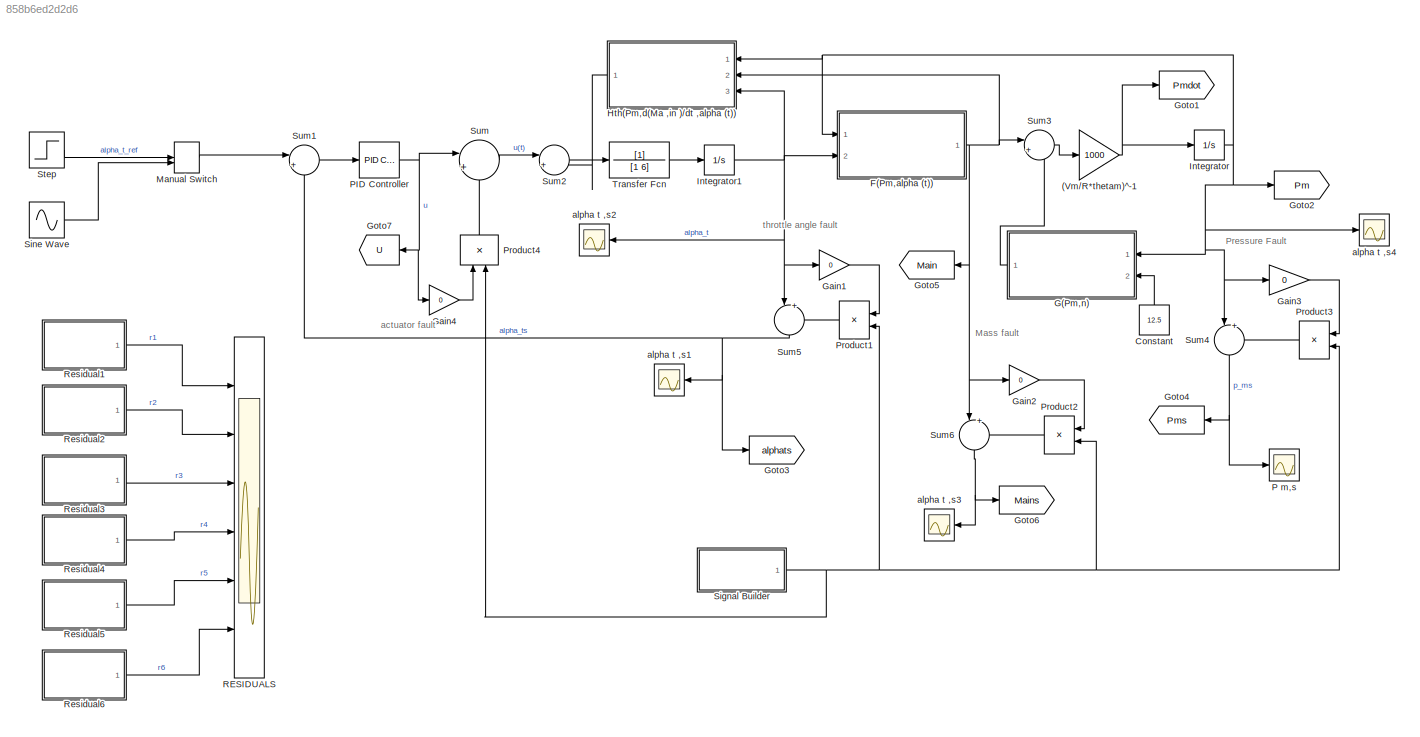
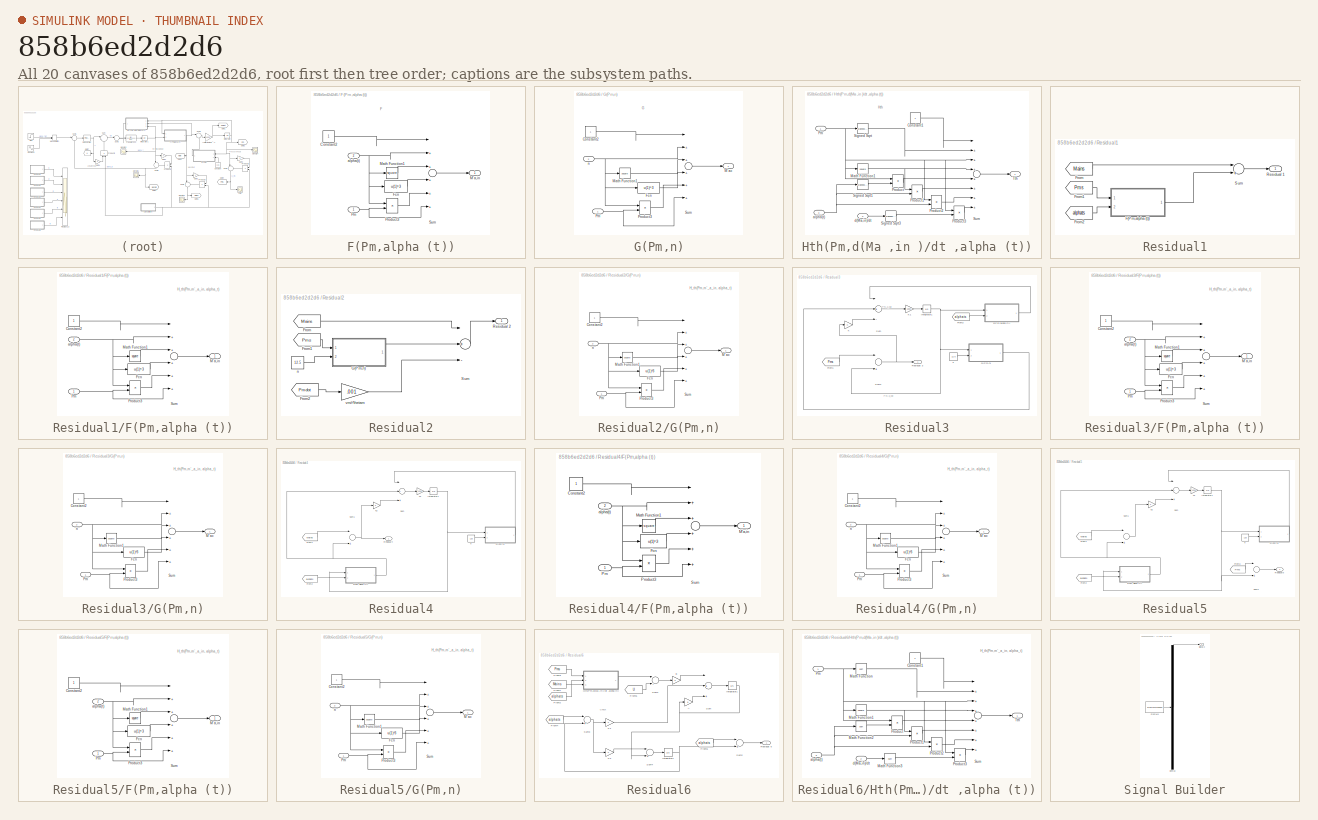
[diagram: thumbnail index - all 20 canvases of the model, root first then tree order]
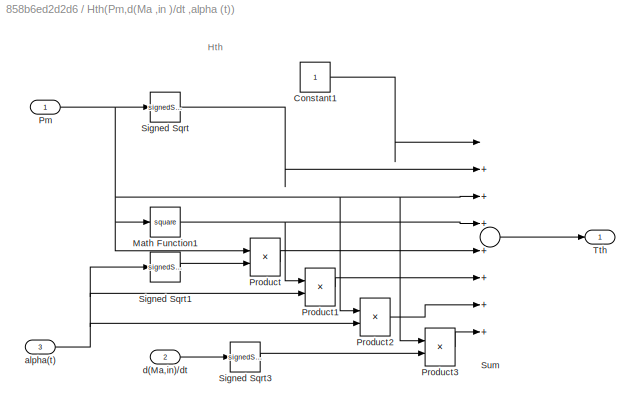
MODEL slx_858b6ed2d2d6
KIND model
CONFIG AbsTol = auto
CONFIG EnableMultiTasking = on
CONFIG FixedStep = auto
CONFIG MaxStep = auto
CONFIG MinStep = auto
CONFIG RelTol = 1e-3
CONFIG SampleTimeConstraint = Unconstrained
CONFIG Solver = ode23tb
CONFIG SolverName = ode23tb
CONFIG StartTime = 0.0
CONFIG StopTime = 40
BLOCK [Gain] (Vm//R*thetam)^-1
  Gain = 1000
  OutDataTypeStr = Inherit: Inherit via internal rule
  ParamDataTypeStr = Inherit: Inherit via internal rule
  SaturateOnIntegerOverflow = off
BLOCK [Constant] Constant
  Value = 12.5
BLOCK [SubSystem] F(Pm,alpha (t))
  Ports = [2, 1]
  RequestExecContextInheritance = off
  Variant = off
BLOCK [Constant] F(Pm,alpha (t))/Constant2
BLOCK [Fcn] F(Pm,alpha (t))/Fcn
  Expr = u(1)^3
BLOCK [Outport] F(Pm,alpha (t))/M'a,in
  IconDisplay = Port number
BLOCK [Math] F(Pm,alpha (t))/Math Function1
  Operator = square
  Ports = [1, 1]
BLOCK [Inport] F(Pm,alpha (t))/Pm
  IconDisplay = Port number
BLOCK [Product] F(Pm,alpha (t))/Product3
  InputSameDT = off
  OutDataTypeStr = Inherit: Inherit via internal rule
  Ports = [2, 1]
  SaturateOnIntegerOverflow = off
BLOCK [Sum] F(Pm,alpha (t))/Sum
  InputSameDT = off
  Inputs = |++++++
  OutDataTypeStr = Inherit: Inherit via internal rule
  Ports = [6, 1]
  SaturateOnIntegerOverflow = off
BLOCK [Inport] F(Pm,alpha (t))/alpha(t)
  IconDisplay = Port number
  Port = 2
BLOCK [SubSystem] G(Pm,n)
  Ports = [2, 1]
  RequestExecContextInheritance = off
  Variant = off
BLOCK [Constant] G(Pm,n)/Constant2
BLOCK [Fcn] G(Pm,n)/Fcn
  Expr = u(1)^3
BLOCK [Outport] G(Pm,n)/M'ac
  IconDisplay = Port number
BLOCK [Math] G(Pm,n)/Math Function1
  Operator = square
  Ports = [1, 1]
BLOCK [Inport] G(Pm,n)/Pm
  IconDisplay = Port number
BLOCK [Product] G(Pm,n)/Product3
  InputSameDT = off
  OutDataTypeStr = Inherit: Inherit via internal rule
  Ports = [2, 1]
  SaturateOnIntegerOverflow = off
BLOCK [Sum] G(Pm,n)/Sum
  InputSameDT = off
  Inputs = |++++++
  OutDataTypeStr = Inherit: Inherit via internal rule
  Ports = [6, 1]
  SaturateOnIntegerOverflow = off
BLOCK [Inport] G(Pm,n)/n
  IconDisplay = Port number
  Port = 2
BLOCK [Gain] Gain1
  Gain = 0
  OutDataTypeStr = Inherit: Inherit via internal rule
  ParamDataTypeStr = Inherit: Inherit via internal rule
  SaturateOnIntegerOverflow = off
BLOCK [Gain] Gain2
  Gain = 0
  OutDataTypeStr = Inherit: Inherit via internal rule
  ParamDataTypeStr = Inherit: Inherit via internal rule
  SaturateOnIntegerOverflow = off
BLOCK [Gain] Gain3
  Gain = 0
  OutDataTypeStr = Inherit: Inherit via internal rule
  ParamDataTypeStr = Inherit: Inherit via internal rule
  SaturateOnIntegerOverflow = off
BLOCK [Gain] Gain4
  Gain = 0
  OutDataTypeStr = Inherit: Inherit via internal rule
  ParamDataTypeStr = Inherit: Inherit via internal rule
  SaturateOnIntegerOverflow = off
BLOCK [Goto] Goto1
  GotoTag = Pmdot
  TagVisibility = global
BLOCK [Goto] Goto2
  GotoTag = Pm
  TagVisibility = global
BLOCK [Goto] Goto3
  GotoTag = alphats
  TagVisibility = global
BLOCK [Goto] Goto4
  GotoTag = Pms
  TagVisibility = global
BLOCK [Goto] Goto5
  GotoTag = Main
  TagVisibility = global
BLOCK [Goto] Goto6
  GotoTag = Mains
  TagVisibility = global
BLOCK [Goto] Goto7
  GotoTag = U
  TagVisibility = global
BLOCK [SubSystem] Hth(Pm,d(Ma ,in )//dt ,alpha (t))
  Ports = [3, 1]
  RequestExecContextInheritance = off
  Variant = off
BLOCK [Constant] Hth(Pm,d(Ma ,in )//dt ,alpha (t))/Constant1
BLOCK [Math] Hth(Pm,d(Ma ,in )//dt ,alpha (t))/Math Function1
  Operator = square
  Ports = [1, 1]
BLOCK [Inport] Hth(Pm,d(Ma ,in )//dt ,alpha (t))/Pm
  IconDisplay = Port number
BLOCK [Product] Hth(Pm,d(Ma ,in )//dt ,alpha (t))/Product
  InputSameDT = off
  OutDataTypeStr = Inherit: Inherit via internal rule
  Ports = [2, 1]
  SaturateOnIntegerOverflow = off
BLOCK [Product] Hth(Pm,d(Ma ,in )//dt ,alpha (t))/Product1
  InputSameDT = off
  OutDataTypeStr = Inherit: Inherit via internal rule
  Ports = [2, 1]
  SaturateOnIntegerOverflow = off
BLOCK [Product] Hth(Pm,d(Ma ,in )//dt ,alpha (t))/Product2
  InputSameDT = off
  OutDataTypeStr = Inherit: Inherit via internal rule
  Ports = [2, 1]
  SaturateOnIntegerOverflow = off
BLOCK [Product] Hth(Pm,d(Ma ,in )//dt ,alpha (t))/Product3
  InputSameDT = off
  OutDataTypeStr = Inherit: Inherit via internal rule
  Ports = [2, 1]
  SaturateOnIntegerOverflow = off
BLOCK [Sqrt] Hth(Pm,d(Ma ,in )//dt ,alpha (t))/Signed Sqrt
  Operator = signedSqrt
BLOCK [Sqrt] Hth(Pm,d(Ma ,in )//dt ,alpha (t))/Signed Sqrt1
  Operator = signedSqrt
BLOCK [Sqrt] Hth(Pm,d(Ma ,in )//dt ,alpha (t))/Signed Sqrt3
  Operator = signedSqrt
BLOCK [Sum] Hth(Pm,d(Ma ,in )//dt ,alpha (t))/Sum
  InputSameDT = off
  Inputs = |++++++++
  OutDataTypeStr = Inherit: Inherit via internal rule
  Ports = [8, 1]
  SaturateOnIntegerOverflow = off
BLOCK [Outport] Hth(Pm,d(Ma ,in )//dt ,alpha (t))/Tth
  IconDisplay = Port number
BLOCK [Inport] Hth(Pm,d(Ma ,in )//dt ,alpha (t))/alpha(t)
  IconDisplay = Port number
  Port = 3
BLOCK [Inport] Hth(Pm,d(Ma ,in )//dt ,alpha (t))/d(Ma,in)//dt
  IconDisplay = Port number
  Port = 2
BLOCK [Integrator] Integrator
  Ports = [1, 1]
BLOCK [Integrator] Integrator1
  Ports = [1, 1]
BLOCK [ManualSwitch] Manual Switch
BLOCK [Scope] P m,s
  NumInputPorts = 1
  Ports = [1]
  ScopeSpecificationString = Simulink.scopes.TimeScopeBlockCfg('CurrentConfiguration', extmgr.ConfigurationSet(extmgr.Configuration('Core','General UI',true),extmgr.Configuration('Core','Source UI',true),extmgr.Configuration('Sources','WiredSimulink',true,'DataLoggingVariableName','ScopeData3','DataLoggingSaveFormat','StructureWithTime','DataLoggingLimitDataPoints',true,'DataLoggingDecimation','1','DataLoggingDecimateData',tr...<+1714ch>
BLOCK [Reference] PID Controller  REF=simulink/Continuous/PID Controller
  Ports = [1, 1]
  SourceBlock = simulink/Continuous/PID Controller
  SourceProductBaseCode = SL
  SourceProductName = Simulink
  SourceType = PID 1dof
BLOCK [Product] Product1
  InputSameDT = off
  OutDataTypeStr = Inherit: Inherit via internal rule
  Ports = [2, 1]
  SaturateOnIntegerOverflow = off
BLOCK [Product] Product2
  InputSameDT = off
  OutDataTypeStr = Inherit: Inherit via internal rule
  Ports = [2, 1]
  SaturateOnIntegerOverflow = off
BLOCK [Product] Product3
  InputSameDT = off
  OutDataTypeStr = Inherit: Inherit via internal rule
  Ports = [2, 1]
  SaturateOnIntegerOverflow = off
BLOCK [Product] Product4
  InputSameDT = off
  OutDataTypeStr = Inherit: Inherit via internal rule
  Ports = [2, 1]
  SaturateOnIntegerOverflow = off
BLOCK [Scope] RESIDUALS
  NumInputPorts = 6
  Ports = [6]
  ScopeSpecificationString = Simulink.scopes.TimeScopeBlockCfg('CurrentConfiguration', extmgr.ConfigurationSet(extmgr.Configuration('Core','General UI',true),extmgr.Configuration('Core','Source UI',true),extmgr.Configuration('Sources','WiredSimulink',true,'DataLoggingVariableName','ScopeData9','DataLoggingSaveFormat','StructureWithTime','DataLoggingDecimation','1','DataLoggingDecimateData',true),extmgr.Configuration('Visuals'...<+5269ch>
BLOCK [SubSystem] Residual1
  Ports = [0, 1]
  RequestExecContextInheritance = off
  Variant = off
BLOCK [SubSystem] Residual1/F(Pm,alpha (t))
  Ports = [2, 1]
  RequestExecContextInheritance = off
  Variant = off
BLOCK [Constant] Residual1/F(Pm,alpha (t))/Constant2
BLOCK [Fcn] Residual1/F(Pm,alpha (t))/Fcn
  Expr = u(1)^3
BLOCK [Outport] Residual1/F(Pm,alpha (t))/M'a,in
  IconDisplay = Port number
BLOCK [Math] Residual1/F(Pm,alpha (t))/Math Function1
  Operator = square
  Ports = [1, 1]
BLOCK [Inport] Residual1/F(Pm,alpha (t))/Pm
  IconDisplay = Port number
BLOCK [Product] Residual1/F(Pm,alpha (t))/Product3
  InputSameDT = off
  OutDataTypeStr = Inherit: Inherit via internal rule
  Ports = [2, 1]
  SaturateOnIntegerOverflow = off
BLOCK [Sum] Residual1/F(Pm,alpha (t))/Sum
  InputSameDT = off
  Inputs = |++++++
  OutDataTypeStr = Inherit: Inherit via internal rule
  Ports = [6, 1]
  SaturateOnIntegerOverflow = off
BLOCK [Inport] Residual1/F(Pm,alpha (t))/alpha(t)
  IconDisplay = Port number
  Port = 2
BLOCK [From] Residual1/From
  CloseFcn = tagdialog Close
  GotoTag = Mains
  TagVisibility = global
BLOCK [From] Residual1/From1
  CloseFcn = tagdialog Close
  GotoTag = Pms
  TagVisibility = global
BLOCK [From] Residual1/From2
  CloseFcn = tagdialog Close
  GotoTag = alphats
  TagVisibility = global
BLOCK [Outport] Residual1/Residual 1
  IconDisplay = Port number
BLOCK [Sum] Residual1/Sum
  InputSameDT = off
  Inputs = |+-
  OutDataTypeStr = Inherit: Inherit via internal rule
  Ports = [2, 1]
  SaturateOnIntegerOverflow = off
BLOCK [SubSystem] Residual2
  Ports = [0, 1]
  RequestExecContextInheritance = off
  Variant = off
BLOCK [From] Residual2/From
  CloseFcn = tagdialog Close
  GotoTag = Mains
  TagVisibility = global
BLOCK [From] Residual2/From1
  CloseFcn = tagdialog Close
  GotoTag = Pms
  TagVisibility = global
BLOCK [From] Residual2/From2
  CloseFcn = tagdialog Close
  GotoTag = Pmdot
  TagVisibility = global
BLOCK [SubSystem] Residual2/G(Pm,n)
  Ports = [2, 1]
  RequestExecContextInheritance = off
  Variant = off
BLOCK [Constant] Residual2/G(Pm,n)/Constant2
BLOCK [Fcn] Residual2/G(Pm,n)/Fcn
  Expr = u(1)^3
BLOCK [Outport] Residual2/G(Pm,n)/M'ac
  IconDisplay = Port number
BLOCK [Math] Residual2/G(Pm,n)/Math Function1
  Operator = square
  Ports = [1, 1]
BLOCK [Inport] Residual2/G(Pm,n)/Pm
  IconDisplay = Port number
BLOCK [Product] Residual2/G(Pm,n)/Product3
  InputSameDT = off
  OutDataTypeStr = Inherit: Inherit via internal rule
  Ports = [2, 1]
  SaturateOnIntegerOverflow = off
BLOCK [Sum] Residual2/G(Pm,n)/Sum
  InputSameDT = off
  Inputs = |++++++
  OutDataTypeStr = Inherit: Inherit via internal rule
  Ports = [6, 1]
  SaturateOnIntegerOverflow = off
BLOCK [Inport] Residual2/G(Pm,n)/n
  IconDisplay = Port number
  Port = 2
BLOCK [Outport] Residual2/Residual 2
  IconDisplay = Port number
BLOCK [Sum] Residual2/Sum
  InputSameDT = off
  Inputs = |+--
  OutDataTypeStr = Inherit: Inherit via internal rule
  Ports = [3, 1]
  SaturateOnIntegerOverflow = off
BLOCK [Constant] Residual2/n
  Value = 12.5
BLOCK [Gain] Residual2/vm//r*thetam
  Gain = .001
  OutDataTypeStr = Inherit: Inherit via internal rule
  ParamDataTypeStr = Inherit: Inherit via internal rule
  SaturateOnIntegerOverflow = off
BLOCK [SubSystem] Residual3
  Ports = [0, 1]
  RequestExecContextInheritance = off
  Variant = off
BLOCK [SubSystem] Residual3/F(Pm,alpha (t))
  Ports = [2, 1]
  RequestExecContextInheritance = off
  Variant = off
BLOCK [Constant] Residual3/F(Pm,alpha (t))/Constant2
BLOCK [Fcn] Residual3/F(Pm,alpha (t))/Fcn
  Expr = u(1)^3
BLOCK [Outport] Residual3/F(Pm,alpha (t))/M'a,in
  IconDisplay = Port number
BLOCK [Math] Residual3/F(Pm,alpha (t))/Math Function1
  Operator = square
  Ports = [1, 1]
BLOCK [Inport] Residual3/F(Pm,alpha (t))/Pm
  IconDisplay = Port number
BLOCK [Product] Residual3/F(Pm,alpha (t))/Product3
  InputSameDT = off
  OutDataTypeStr = Inherit: Inherit via internal rule
  Ports = [2, 1]
  SaturateOnIntegerOverflow = off
BLOCK [Sum] Residual3/F(Pm,alpha (t))/Sum
  InputSameDT = off
  Inputs = |++++++
  OutDataTypeStr = Inherit: Inherit via internal rule
  Ports = [6, 1]
  SaturateOnIntegerOverflow = off
BLOCK [Inport] Residual3/F(Pm,alpha (t))/alpha(t)
  IconDisplay = Port number
  Port = 2
BLOCK [From] Residual3/From1
  CloseFcn = tagdialog Close
  GotoTag = Pms
  TagVisibility = global
BLOCK [From] Residual3/From2
  CloseFcn = tagdialog Close
  GotoTag = alphats
  TagVisibility = global
BLOCK [SubSystem] Residual3/G(Pm,n)
  Ports = [2, 1]
  RequestExecContextInheritance = off
  Variant = off
BLOCK [Constant] Residual3/G(Pm,n)/Constant2
BLOCK [Fcn] Residual3/G(Pm,n)/Fcn
  Expr = u(1)^3
BLOCK [Outport] Residual3/G(Pm,n)/M'ac
  IconDisplay = Port number
BLOCK [Math] Residual3/G(Pm,n)/Math Function1
  Operator = square
  Ports = [1, 1]
BLOCK [Inport] Residual3/G(Pm,n)/Pm
  IconDisplay = Port number
BLOCK [Product] Residual3/G(Pm,n)/Product3
  InputSameDT = off
  OutDataTypeStr = Inherit: Inherit via internal rule
  Ports = [2, 1]
  SaturateOnIntegerOverflow = off
BLOCK [Sum] Residual3/G(Pm,n)/Sum
  InputSameDT = off
  Inputs = |++++++
  OutDataTypeStr = Inherit: Inherit via internal rule
  Ports = [6, 1]
  SaturateOnIntegerOverflow = off
BLOCK [Inport] Residual3/G(Pm,n)/n
  IconDisplay = Port number
  Port = 2
BLOCK [Integrator] Residual3/Integrator1
  Ports = [1, 1]
BLOCK [Gain] Residual3/K
  OutDataTypeStr = Inherit: Inherit via internal rule
  ParamDataTypeStr = Inherit: Inherit via internal rule
  SaturateOnIntegerOverflow = off
BLOCK [Gain] Residual3/K1
  Gain = 1000
  OutDataTypeStr = Inherit: Inherit via internal rule
  ParamDataTypeStr = Inherit: Inherit via internal rule
  SaturateOnIntegerOverflow = off
BLOCK [Outport] Residual3/Residual 3
  IconDisplay = Port number
BLOCK [Sum] Residual3/Sum
  InputSameDT = off
  Inputs = |+-+
  OutDataTypeStr = Inherit: Inherit via internal rule
  Ports = [3, 1]
  SaturateOnIntegerOverflow = off
BLOCK [Sum] Residual3/Sum1
  InputSameDT = off
  Inputs = |+-
  OutDataTypeStr = Inherit: Inherit via internal rule
  Ports = [2, 1]
  SaturateOnIntegerOverflow = off
BLOCK [Constant] Residual3/n
  Value = 12.5
BLOCK [SubSystem] Residual4
  Ports = [0, 1]
  RequestExecContextInheritance = off
  Variant = off
BLOCK [SubSystem] Residual4/F(Pm,alpha (t))
  Ports = [2, 1]
  RequestExecContextInheritance = off
  Variant = off
BLOCK [Constant] Residual4/F(Pm,alpha (t))/Constant2
BLOCK [Fcn] Residual4/F(Pm,alpha (t))/Fcn
  Expr = u(1)^3
BLOCK [Outport] Residual4/F(Pm,alpha (t))/M'a,in
  IconDisplay = Port number
BLOCK [Math] Residual4/F(Pm,alpha (t))/Math Function1
  Operator = square
  Ports = [1, 1]
BLOCK [Inport] Residual4/F(Pm,alpha (t))/Pm
  IconDisplay = Port number
BLOCK [Product] Residual4/F(Pm,alpha (t))/Product3
  InputSameDT = off
  OutDataTypeStr = Inherit: Inherit via internal rule
  Ports = [2, 1]
  SaturateOnIntegerOverflow = off
BLOCK [Sum] Residual4/F(Pm,alpha (t))/Sum
  InputSameDT = off
  Inputs = |++++++
  OutDataTypeStr = Inherit: Inherit via internal rule
  Ports = [6, 1]
  SaturateOnIntegerOverflow = off
BLOCK [Inport] Residual4/F(Pm,alpha (t))/alpha(t)
  IconDisplay = Port number
  Port = 2
BLOCK [From] Residual4/From1
  CloseFcn = tagdialog Close
  GotoTag = Mains
  TagVisibility = global
BLOCK [From] Residual4/From2
  CloseFcn = tagdialog Close
  GotoTag = alphats
  TagVisibility = global
BLOCK [SubSystem] Residual4/G(Pm,n)
  Ports = [2, 1]
  RequestExecContextInheritance = off
  Variant = off
BLOCK [Constant] Residual4/G(Pm,n)/Constant2
BLOCK [Fcn] Residual4/G(Pm,n)/Fcn
  Expr = u(1)^3
BLOCK [Outport] Residual4/G(Pm,n)/M'ac
  IconDisplay = Port number
BLOCK [Math] Residual4/G(Pm,n)/Math Function1
  Operator = square
  Ports = [1, 1]
BLOCK [Inport] Residual4/G(Pm,n)/Pm
  IconDisplay = Port number
BLOCK [Product] Residual4/G(Pm,n)/Product3
  InputSameDT = off
  OutDataTypeStr = Inherit: Inherit via internal rule
  Ports = [2, 1]
  SaturateOnIntegerOverflow = off
BLOCK [Sum] Residual4/G(Pm,n)/Sum
  InputSameDT = off
  Inputs = |++++++
  OutDataTypeStr = Inherit: Inherit via internal rule
  Ports = [6, 1]
  SaturateOnIntegerOverflow = off
BLOCK [Inport] Residual4/G(Pm,n)/n
  IconDisplay = Port number
  Port = 2
BLOCK [Integrator] Residual4/Integrator1
  Ports = [1, 1]
BLOCK [Gain] Residual4/K1
  Gain = 1000
  OutDataTypeStr = Inherit: Inherit via internal rule
  ParamDataTypeStr = Inherit: Inherit via internal rule
  SaturateOnIntegerOverflow = off
BLOCK [Gain] Residual4/K2
  OutDataTypeStr = Inherit: Inherit via internal rule
  ParamDataTypeStr = Inherit: Inherit via internal rule
  SaturateOnIntegerOverflow = off
BLOCK [Outport] Residual4/Residual 4
  IconDisplay = Port number
BLOCK [Sum] Residual4/Sum
  InputSameDT = off
  Inputs = |-++
  OutDataTypeStr = Inherit: Inherit via internal rule
  Ports = [3, 1]
  SaturateOnIntegerOverflow = off
BLOCK [Sum] Residual4/Sum1
  InputSameDT = off
  Inputs = |+-
  OutDataTypeStr = Inherit: Inherit via internal rule
  Ports = [2, 1]
  SaturateOnIntegerOverflow = off
BLOCK [Constant] Residual4/n
  Value = 12.5
BLOCK [SubSystem] Residual5
  Ports = [0, 1]
  RequestExecContextInheritance = off
  Variant = off
BLOCK [SubSystem] Residual5/F(Pm,alpha (t))
  Ports = [2, 1]
  RequestExecContextInheritance = off
  Variant = off
BLOCK [Constant] Residual5/F(Pm,alpha (t))/Constant2
BLOCK [Fcn] Residual5/F(Pm,alpha (t))/Fcn
  Expr = u(1)^3
BLOCK [Outport] Residual5/F(Pm,alpha (t))/M'a,in
  IconDisplay = Port number
BLOCK [Math] Residual5/F(Pm,alpha (t))/Math Function1
  Operator = square
  Ports = [1, 1]
BLOCK [Inport] Residual5/F(Pm,alpha (t))/Pm
  IconDisplay = Port number
BLOCK [Product] Residual5/F(Pm,alpha (t))/Product3
  InputSameDT = off
  OutDataTypeStr = Inherit: Inherit via internal rule
  Ports = [2, 1]
  SaturateOnIntegerOverflow = off
BLOCK [Sum] Residual5/F(Pm,alpha (t))/Sum
  InputSameDT = off
  Inputs = |++++++
  OutDataTypeStr = Inherit: Inherit via internal rule
  Ports = [6, 1]
  SaturateOnIntegerOverflow = off
BLOCK [Inport] Residual5/F(Pm,alpha (t))/alpha(t)
  IconDisplay = Port number
  Port = 2
BLOCK [From] Residual5/From1
  CloseFcn = tagdialog Close
  GotoTag = Mains
  TagVisibility = global
BLOCK [From] Residual5/From2
  CloseFcn = tagdialog Close
  GotoTag = alphats
  TagVisibility = global
BLOCK [From] Residual5/From3
  CloseFcn = tagdialog Close
  GotoTag = Pms
  TagVisibility = global
BLOCK [SubSystem] Residual5/G(Pm,n)
  Ports = [2, 1]
  RequestExecContextInheritance = off
  Variant = off
BLOCK [Constant] Residual5/G(Pm,n)/Constant2
BLOCK [Fcn] Residual5/G(Pm,n)/Fcn
  Expr = u(1)^3
BLOCK [Outport] Residual5/G(Pm,n)/M'ac
  IconDisplay = Port number
BLOCK [Math] Residual5/G(Pm,n)/Math Function1
  Operator = square
  Ports = [1, 1]
BLOCK [Inport] Residual5/G(Pm,n)/Pm
  IconDisplay = Port number
BLOCK [Product] Residual5/G(Pm,n)/Product3
  InputSameDT = off
  OutDataTypeStr = Inherit: Inherit via internal rule
  Ports = [2, 1]
  SaturateOnIntegerOverflow = off
BLOCK [Sum] Residual5/G(Pm,n)/Sum
  InputSameDT = off
  Inputs = |++++++
  OutDataTypeStr = Inherit: Inherit via internal rule
  Ports = [6, 1]
  SaturateOnIntegerOverflow = off
BLOCK [Inport] Residual5/G(Pm,n)/n
  IconDisplay = Port number
  Port = 2
BLOCK [Integrator] Residual5/Integrator1
  Ports = [1, 1]
BLOCK [Gain] Residual5/K1
  Gain = 1000
  OutDataTypeStr = Inherit: Inherit via internal rule
  ParamDataTypeStr = Inherit: Inherit via internal rule
  SaturateOnIntegerOverflow = off
BLOCK [Gain] Residual5/K2
  OutDataTypeStr = Inherit: Inherit via internal rule
  ParamDataTypeStr = Inherit: Inherit via internal rule
  SaturateOnIntegerOverflow = off
BLOCK [Outport] Residual5/Residual 5
  IconDisplay = Port number
BLOCK [Sum] Residual5/Sum
  InputSameDT = off
  Inputs = |-++
  OutDataTypeStr = Inherit: Inherit via internal rule
  Ports = [3, 1]
  SaturateOnIntegerOverflow = off
BLOCK [Sum] Residual5/Sum1
  InputSameDT = off
  Inputs = |+-
  OutDataTypeStr = Inherit: Inherit via internal rule
  Ports = [2, 1]
  SaturateOnIntegerOverflow = off
BLOCK [Sum] Residual5/Sum2
  InputSameDT = off
  Inputs = |+-
  OutDataTypeStr = Inherit: Inherit via internal rule
  Ports = [2, 1]
  SaturateOnIntegerOverflow = off
BLOCK [Constant] Residual5/n
  Value = 12.5
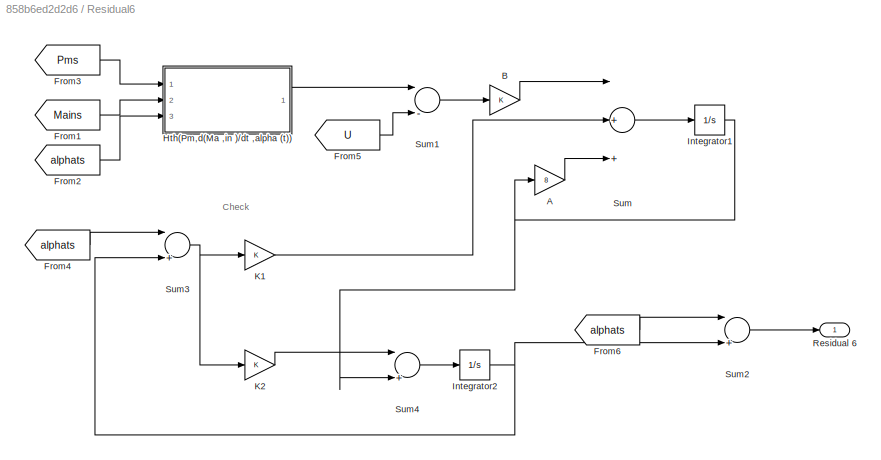
BLOCK [SubSystem] Residual6
  Ports = [0, 1]
  RequestExecContextInheritance = off
  Variant = off
BLOCK [Gain] Residual6/A
  Gain = 8
  OutDataTypeStr = Inherit: Inherit via internal rule
  ParamDataTypeStr = Inherit: Inherit via internal rule
  SaturateOnIntegerOverflow = off
BLOCK [Gain] Residual6/B
  OutDataTypeStr = Inherit: Inherit via internal rule
  ParamDataTypeStr = Inherit: Inherit via internal rule
  SaturateOnIntegerOverflow = off
BLOCK [From] Residual6/From1
  CloseFcn = tagdialog Close
  GotoTag = Mains
  TagVisibility = global
BLOCK [From] Residual6/From2
  CloseFcn = tagdialog Close
  GotoTag = alphats
  TagVisibility = global
BLOCK [From] Residual6/From3
  CloseFcn = tagdialog Close
  GotoTag = Pms
  TagVisibility = global
BLOCK [From] Residual6/From4
  CloseFcn = tagdialog Close
  GotoTag = alphats
  TagVisibility = global
BLOCK [From] Residual6/From5
  CloseFcn = tagdialog Close
  GotoTag = U
  TagVisibility = global
BLOCK [From] Residual6/From6
  CloseFcn = tagdialog Close
  GotoTag = alphats
  TagVisibility = global
BLOCK [SubSystem] Residual6/Hth(Pm,d(Ma ,in )//dt ,alpha (t))
  Ports = [3, 1]
  RequestExecContextInheritance = off
  Variant = off
BLOCK [Constant] Residual6/Hth(Pm,d(Ma ,in )//dt ,alpha (t))/Constant1
BLOCK [Math] Residual6/Hth(Pm,d(Ma ,in )//dt ,alpha (t))/Math Function
  Operator = sqrt
  Ports = [1, 1]
BLOCK [Math] Residual6/Hth(Pm,d(Ma ,in )//dt ,alpha (t))/Math Function1
  Operator = square
  Ports = [1, 1]
BLOCK [Math] Residual6/Hth(Pm,d(Ma ,in )//dt ,alpha (t))/Math Function2
  Operator = sqrt
  Ports = [1, 1]
BLOCK [Math] Residual6/Hth(Pm,d(Ma ,in )//dt ,alpha (t))/Math Function3
  Operator = sqrt
  Ports = [1, 1]
BLOCK [Inport] Residual6/Hth(Pm,d(Ma ,in )//dt ,alpha (t))/Pm
  IconDisplay = Port number
BLOCK [Product] Residual6/Hth(Pm,d(Ma ,in )//dt ,alpha (t))/Product
  InputSameDT = off
  OutDataTypeStr = Inherit: Inherit via internal rule
  Ports = [2, 1]
  SaturateOnIntegerOverflow = off
BLOCK [Product] Residual6/Hth(Pm,d(Ma ,in )//dt ,alpha (t))/Product1
  InputSameDT = off
  OutDataTypeStr = Inherit: Inherit via internal rule
  Ports = [2, 1]
  SaturateOnIntegerOverflow = off
BLOCK [Product] Residual6/Hth(Pm,d(Ma ,in )//dt ,alpha (t))/Product2
  InputSameDT = off
  OutDataTypeStr = Inherit: Inherit via internal rule
  Ports = [2, 1]
  SaturateOnIntegerOverflow = off
BLOCK [Product] Residual6/Hth(Pm,d(Ma ,in )//dt ,alpha (t))/Product3
  InputSameDT = off
  OutDataTypeStr = Inherit: Inherit via internal rule
  Ports = [2, 1]
  SaturateOnIntegerOverflow = off
BLOCK [Sum] Residual6/Hth(Pm,d(Ma ,in )//dt ,alpha (t))/Sum
  InputSameDT = off
  Inputs = |++++++++
  OutDataTypeStr = Inherit: Inherit via internal rule
  Ports = [8, 1]
  SaturateOnIntegerOverflow = off
BLOCK [Outport] Residual6/Hth(Pm,d(Ma ,in )//dt ,alpha (t))/Tth
  IconDisplay = Port number
BLOCK [Inport] Residual6/Hth(Pm,d(Ma ,in )//dt ,alpha (t))/alpha(t)
  IconDisplay = Port number
  Port = 3
BLOCK [Inport] Residual6/Hth(Pm,d(Ma ,in )//dt ,alpha (t))/d(Ma,in)//dt
  IconDisplay = Port number
  Port = 2
BLOCK [Integrator] Residual6/Integrator1
  Ports = [1, 1]
BLOCK [Integrator] Residual6/Integrator2
  Ports = [1, 1]
BLOCK [Gain] Residual6/K1
  OutDataTypeStr = Inherit: Inherit via internal rule
  ParamDataTypeStr = Inherit: Inherit via internal rule
  SaturateOnIntegerOverflow = off
BLOCK [Gain] Residual6/K2
  OutDataTypeStr = Inherit: Inherit via internal rule
  ParamDataTypeStr = Inherit: Inherit via internal rule
  SaturateOnIntegerOverflow = off
BLOCK [Outport] Residual6/Residual 6
  IconDisplay = Port number
BLOCK [Sum] Residual6/Sum
  InputSameDT = off
  Inputs = |+++
  OutDataTypeStr = Inherit: Inherit via internal rule
  Ports = [3, 1]
  SaturateOnIntegerOverflow = off
BLOCK [Sum] Residual6/Sum1
  InputSameDT = off
  Inputs = |-+
  OutDataTypeStr = Inherit: Inherit via internal rule
  Ports = [2, 1]
  SaturateOnIntegerOverflow = off
BLOCK [Sum] Residual6/Sum2
  InputSameDT = off
  Inputs = |+-
  OutDataTypeStr = Inherit: Inherit via internal rule
  Ports = [2, 1]
  SaturateOnIntegerOverflow = off
BLOCK [Sum] Residual6/Sum3
  InputSameDT = off
  Inputs = |+-
  OutDataTypeStr = Inherit: Inherit via internal rule
  Ports = [2, 1]
  SaturateOnIntegerOverflow = off
BLOCK [Sum] Residual6/Sum4
  InputSameDT = off
  Inputs = |++
  OutDataTypeStr = Inherit: Inherit via internal rule
  Ports = [2, 1]
  SaturateOnIntegerOverflow = off
BLOCK [SubSystem] Signal Builder
  ClipboardFcn = sigbuilder_block('clipboard');
  CloseFcn = sigbuilder_block('close');
  ContinueFcn = sigbuilder_block('continue')
  CopyFcn = sigbuilder_block('copy');
  DeleteFcn = sigbuilder_block('delete');
  LoadFcn = sigbuilder_block('load');
  MaskHideContents = on
  ModelCloseFcn = sigbuilder_block('modelClose');
  NameChangeFcn = sigbuilder_block('namechange');
  OpenFcn = sigbuilder_block('open',[437.25 117.75 550.5 394.5 ]);
  PauseFcn = sigbuilder_block('pause')
  Ports = [0, 1]
  PreSaveFcn = sigbuilder_block('preSave');
  RequestExecContextInheritance = off
  StartFcn = sigbuilder_block('start');
  StopFcn = sigbuilder_block('stop');
  Tag = STV Subsys
  Variant = off
BLOCK [Demux] Signal Builder/Demux
  Outputs = 1
  Ports = [1, 1]
  Tag = STV Demux
BLOCK [FromWorkspace] Signal Builder/FromWs
  SampleTime = 0
  Tag = STV FromWs
  VariableName = tuvar
  ZeroCross = on
BLOCK [Outport] Signal Builder/Signal 2
  IconDisplay = Port number
  Tag = STV Outport
BLOCK [Sin] Sine Wave
  Ports = [0, 1]
  SampleTime = 0
BLOCK [Step] Step
  After = 20
  SampleTime = 0
  Time = 0.01
BLOCK [Sum] Sum
  IconShape = round
  InputSameDT = off
  Inputs = |++
  OutDataTypeStr = Inherit: Inherit via internal rule
  Ports = [2, 1]
  SaturateOnIntegerOverflow = off
BLOCK [Sum] Sum1
  IconShape = round
  InputSameDT = off
  Inputs = |+-
  OutDataTypeStr = Inherit: Inherit via internal rule
  Ports = [2, 1]
  SaturateOnIntegerOverflow = off
BLOCK [Sum] Sum2
  IconShape = round
  InputSameDT = off
  Inputs = |+-
  OutDataTypeStr = Inherit: Inherit via internal rule
  Ports = [2, 1]
  SaturateOnIntegerOverflow = off
BLOCK [Sum] Sum3
  IconShape = round
  InputSameDT = off
  Inputs = |+-
  OutDataTypeStr = Inherit: Inherit via internal rule
  Ports = [2, 1]
  SaturateOnIntegerOverflow = off
BLOCK [Sum] Sum4
  CollapseMode = Specified dimension
  IconShape = round
  InputSameDT = off
  Inputs = |++
  OutDataTypeStr = Inherit: Inherit via internal rule
  Ports = [2, 1]
  SaturateOnIntegerOverflow = off
BLOCK [Sum] Sum5
  CollapseMode = Specified dimension
  IconShape = round
  InputSameDT = off
  Inputs = |++
  OutDataTypeStr = Inherit: Inherit via internal rule
  Ports = [2, 1]
  SaturateOnIntegerOverflow = off
BLOCK [Sum] Sum6
  CollapseMode = Specified dimension
  IconShape = round
  InputSameDT = off
  Inputs = |++
  OutDataTypeStr = Inherit: Inherit via internal rule
  Ports = [2, 1]
  SaturateOnIntegerOverflow = off
BLOCK [TransferFcn] Transfer Fcn
  Denominator = [1 6]
BLOCK [Scope] alpha t ,s1
  NumInputPorts = 1
  Ports = [1]
  ScopeSpecificationString = Simulink.scopes.TimeScopeBlockCfg('CurrentConfiguration', extmgr.ConfigurationSet(extmgr.Configuration('Core','General UI',true),extmgr.Configuration('Core','Source UI',true),extmgr.Configuration('Sources','WiredSimulink',true,'DataLoggingSaveFormat','StructureWithTime','DataLoggingDecimation','1','DataLoggingDecimateData',true),extmgr.Configuration('Visuals','Time Domain',true,'SerializedDisplays...<+1648ch>
BLOCK [Scope] alpha t ,s2
  NumInputPorts = 1
  Ports = [1]
  ScopeSpecificationString = Simulink.scopes.TimeScopeBlockCfg('CurrentConfiguration', extmgr.ConfigurationSet(extmgr.Configuration('Core','General UI',true),extmgr.Configuration('Core','Source UI',true),extmgr.Configuration('Sources','WiredSimulink',true,'DataLoggingVariableName','ScopeData5','DataLoggingSaveFormat','StructureWithTime','DataLoggingDecimation','1','DataLoggingDecimateData',true),extmgr.Configuration('Visuals'...<+1680ch>
BLOCK [Scope] alpha t ,s3
  NumInputPorts = 1
  Ports = [1]
  ScopeSpecificationString = Simulink.scopes.TimeScopeBlockCfg('CurrentConfiguration', extmgr.ConfigurationSet(extmgr.Configuration('Core','General UI',true),extmgr.Configuration('Core','Source UI',true),extmgr.Configuration('Sources','WiredSimulink',true,'DataLoggingVariableName','ScopeData1','DataLoggingSaveFormat','StructureWithTime','DataLoggingDecimation','1','DataLoggingDecimateData',true),extmgr.Configuration('Visuals'...<+1703ch>
BLOCK [Scope] alpha t ,s4
  NumInputPorts = 1
  Ports = [1]
  ScopeSpecificationString = Simulink.scopes.TimeScopeBlockCfg('CurrentConfiguration', extmgr.ConfigurationSet(extmgr.Configuration('Core','General UI',true),extmgr.Configuration('Core','Source UI',true),extmgr.Configuration('Sources','WiredSimulink',true,'DataLoggingVariableName','ScopeData2','DataLoggingSaveFormat','StructureWithTime','DataLoggingDecimation','1','DataLoggingDecimateData',true),extmgr.Configuration('Visuals'...<+1706ch>
ANNOTATION (root): Mass fault
ANNOTATION (root): Pressure Fault
ANNOTATION (root): actuator fault
ANNOTATION (root): throttle angle fault
ANNOTATION F(Pm,alpha (t)): F
ANNOTATION G(Pm,n): G
ANNOTATION Hth(Pm,d(Ma ,in )//dt ,alpha (t)): Hth
ANNOTATION Residual1/F(Pm,alpha (t)): H_th(Pm,m’_a_in, alpha_t)
ANNOTATION Residual2/G(Pm,n): H_th(Pm,m’_a_in, alpha_t)
ANNOTATION Residual3: P'm,3_hat
ANNOTATION Residual3: Pm,3_hat
ANNOTATION Residual3/F(Pm,alpha (t)): H_th(Pm,m’_a_in, alpha_t)
ANNOTATION Residual3/G(Pm,n): H_th(Pm,m’_a_in, alpha_t)
ANNOTATION Residual4/G(Pm,n): H_th(Pm,m’_a_in, alpha_t)
ANNOTATION Residual5/F(Pm,alpha (t)): H_th(Pm,m’_a_in, alpha_t)
ANNOTATION Residual5/G(Pm,n): H_th(Pm,m’_a_in, alpha_t)
ANNOTATION Residual6: Check
ANNOTATION Residual6/Hth(Pm,d(Ma ,in )//dt ,alpha (t)): H_th(Pm,m’_a_in, alpha_t)
NET (Vm//R*thetam)^-1:1 -> Goto1:1, Integrator:1
LINE Constant:1 -> G(Pm,n):2
LINE F(Pm,alpha (t))/Constant2:1 -> F(Pm,alpha (t))/Sum:1
LINE F(Pm,alpha (t))/Fcn:1 -> F(Pm,alpha (t))/Sum:4
LINE F(Pm,alpha (t))/Math Function1:1 -> F(Pm,alpha (t))/Sum:3
NET F(Pm,alpha (t))/Pm:1 -> F(Pm,alpha (t))/Product3:2, F(Pm,alpha (t))/Sum:6
LINE F(Pm,alpha (t))/Product3:1 -> F(Pm,alpha (t))/Sum:5
LINE F(Pm,alpha (t))/Sum:1 -> F(Pm,alpha (t))/M'a,in:1
NET F(Pm,alpha (t))/alpha(t):1 -> F(Pm,alpha (t))/Fcn:1, F(Pm,alpha (t))/Math Function1:1, F(Pm,alpha (t))/Product3:1, F(Pm,alpha (t))/Sum:2
NET F(Pm,alpha (t)):1 -> Gain2:1, Goto5:1, Hth(Pm,d(Ma ,in )//dt ,alpha (t)):2, Sum3:1, Sum6:1
LINE G(Pm,n)/Constant2:1 -> G(Pm,n)/Sum:1
LINE G(Pm,n)/Fcn:1 -> G(Pm,n)/Sum:4
LINE G(Pm,n)/Math Function1:1 -> G(Pm,n)/Sum:3
NET G(Pm,n)/Pm:1 -> G(Pm,n)/Product3:2, G(Pm,n)/Sum:6
LINE G(Pm,n)/Product3:1 -> G(Pm,n)/Sum:5
LINE G(Pm,n)/Sum:1 -> G(Pm,n)/M'ac:1
NET G(Pm,n)/n:1 -> G(Pm,n)/Fcn:1, G(Pm,n)/Math Function1:1, G(Pm,n)/Product3:1, G(Pm,n)/Sum:2
LINE G(Pm,n):1 -> Sum3:2
LINE Gain1:1 -> Product1:1
LINE Gain2:1 -> Product2:1
LINE Gain3:1 -> Product3:1
LINE Gain4:1 -> Product4:1
LINE Hth(Pm,d(Ma ,in )//dt ,alpha (t))/Constant1:1 -> Hth(Pm,d(Ma ,in )//dt ,alpha (t))/Sum:1
NET Hth(Pm,d(Ma ,in )//dt ,alpha (t))/Math Function1:1 -> Hth(Pm,d(Ma ,in )//dt ,alpha (t))/Product1:1, Hth(Pm,d(Ma ,in )//dt ,alpha (t))/Sum:4
NET Hth(Pm,d(Ma ,in )//dt ,alpha (t))/Pm:1 -> Hth(Pm,d(Ma ,in )//dt ,alpha (t))/Math Function1:1, Hth(Pm,d(Ma ,in )//dt ,alpha (t))/Product2:1, Hth(Pm,d(Ma ,in )//dt ,alpha (t))/Product3:1, Hth(Pm,d(Ma ,in )//dt ,alpha (t))/Product:1, Hth(Pm,d(Ma ,in )//dt ,alpha (t))/Signed Sqrt:1, Hth(Pm,d(Ma ,in )//dt ,alpha (t))/Sum:3
LINE Hth(Pm,d(Ma ,in )//dt ,alpha (t))/Product1:1 -> Hth(Pm,d(Ma ,in )//dt ,alpha (t))/Sum:6
LINE Hth(Pm,d(Ma ,in )//dt ,alpha (t))/Product2:1 -> Hth(Pm,d(Ma ,in )//dt ,alpha (t))/Sum:7
LINE Hth(Pm,d(Ma ,in )//dt ,alpha (t))/Product3:1 -> Hth(Pm,d(Ma ,in )//dt ,alpha (t))/Sum:8
LINE Hth(Pm,d(Ma ,in )//dt ,alpha (t))/Product:1 -> Hth(Pm,d(Ma ,in )//dt ,alpha (t))/Sum:5
LINE Hth(Pm,d(Ma ,in )//dt ,alpha (t))/Signed Sqrt1:1 -> Hth(Pm,d(Ma ,in )//dt ,alpha (t))/Product:2
LINE Hth(Pm,d(Ma ,in )//dt ,alpha (t))/Signed Sqrt3:1 -> Hth(Pm,d(Ma ,in )//dt ,alpha (t))/Product3:2
LINE Hth(Pm,d(Ma ,in )//dt ,alpha (t))/Signed Sqrt:1 -> Hth(Pm,d(Ma ,in )//dt ,alpha (t))/Sum:2
LINE Hth(Pm,d(Ma ,in )//dt ,alpha (t))/Sum:1 -> Hth(Pm,d(Ma ,in )//dt ,alpha (t))/Tth:1
NET Hth(Pm,d(Ma ,in )//dt ,alpha (t))/alpha(t):1 -> Hth(Pm,d(Ma ,in )//dt ,alpha (t))/Product1:2, Hth(Pm,d(Ma ,in )//dt ,alpha (t))/Product2:2, Hth(Pm,d(Ma ,in )//dt ,alpha (t))/Signed Sqrt1:1
LINE Hth(Pm,d(Ma ,in )//dt ,alpha (t))/d(Ma,in)//dt:1 -> Hth(Pm,d(Ma ,in )//dt ,alpha (t))/Signed Sqrt3:1
LINE Hth(Pm,d(Ma ,in )//dt ,alpha (t)):1 -> Sum2:2
NET Integrator1:1 -> F(Pm,alpha (t)):2, Gain1:1, Hth(Pm,d(Ma ,in )//dt ,alpha (t)):3, Sum5:1, alpha t ,s2:1
NET Integrator:1 -> F(Pm,alpha (t)):1, G(Pm,n):1, Gain3:1, Goto2:1, Hth(Pm,d(Ma ,in )//dt ,alpha (t)):1, Sum4:1, alpha t ,s4:1
LINE Manual Switch:1 -> Sum1:1
NET PID Controller:1 -> Gain4:1, Goto7:1, Sum:1
LINE Product1:1 -> Sum5:2
LINE Product2:1 -> Sum6:2
LINE Product3:1 -> Sum4:2
LINE Product4:1 -> Sum:2
LINE Residual1/F(Pm,alpha (t))/Constant2:1 -> Residual1/F(Pm,alpha (t))/Sum:1
LINE Residual1/F(Pm,alpha (t))/Fcn:1 -> Residual1/F(Pm,alpha (t))/Sum:4
LINE Residual1/F(Pm,alpha (t))/Math Function1:1 -> Residual1/F(Pm,alpha (t))/Sum:3
NET Residual1/F(Pm,alpha (t))/Pm:1 -> Residual1/F(Pm,alpha (t))/Product3:2, Residual1/F(Pm,alpha (t))/Sum:6
LINE Residual1/F(Pm,alpha (t))/Product3:1 -> Residual1/F(Pm,alpha (t))/Sum:5
LINE Residual1/F(Pm,alpha (t))/Sum:1 -> Residual1/F(Pm,alpha (t))/M'a,in:1
NET Residual1/F(Pm,alpha (t))/alpha(t):1 -> Residual1/F(Pm,alpha (t))/Fcn:1, Residual1/F(Pm,alpha (t))/Math Function1:1, Residual1/F(Pm,alpha (t))/Product3:1, Residual1/F(Pm,alpha (t))/Sum:2
LINE Residual1/F(Pm,alpha (t)):1 -> Residual1/Sum:2
LINE Residual1/From1:1 -> Residual1/F(Pm,alpha (t)):1
LINE Residual1/From2:1 -> Residual1/F(Pm,alpha (t)):2
LINE Residual1/From:1 -> Residual1/Sum:1
LINE Residual1/Sum:1 -> Residual1/Residual 1:1
LINE Residual1:1 -> RESIDUALS:1
LINE Residual2/From1:1 -> Residual2/G(Pm,n):1
LINE Residual2/From2:1 -> Residual2/vm//r*thetam:1
LINE Residual2/From:1 -> Residual2/Sum:1
LINE Residual2/G(Pm,n)/Constant2:1 -> Residual2/G(Pm,n)/Sum:1
LINE Residual2/G(Pm,n)/Fcn:1 -> Residual2/G(Pm,n)/Sum:4
LINE Residual2/G(Pm,n)/Math Function1:1 -> Residual2/G(Pm,n)/Sum:3
NET Residual2/G(Pm,n)/Pm:1 -> Residual2/G(Pm,n)/Product3:2, Residual2/G(Pm,n)/Sum:6
LINE Residual2/G(Pm,n)/Product3:1 -> Residual2/G(Pm,n)/Sum:5
LINE Residual2/G(Pm,n)/Sum:1 -> Residual2/G(Pm,n)/M'ac:1
NET Residual2/G(Pm,n)/n:1 -> Residual2/G(Pm,n)/Fcn:1, Residual2/G(Pm,n)/Math Function1:1, Residual2/G(Pm,n)/Product3:1, Residual2/G(Pm,n)/Sum:2
LINE Residual2/G(Pm,n):1 -> Residual2/Sum:2
LINE Residual2/Sum:1 -> Residual2/Residual 2:1
LINE Residual2/n:1 -> Residual2/G(Pm,n):2
LINE Residual2/vm//r*thetam:1 -> Residual2/Sum:3
LINE Residual2:1 -> RESIDUALS:2
LINE Residual3/F(Pm,alpha (t))/Constant2:1 -> Residual3/F(Pm,alpha (t))/Sum:1
LINE Residual3/F(Pm,alpha (t))/Fcn:1 -> Residual3/F(Pm,alpha (t))/Sum:4
LINE Residual3/F(Pm,alpha (t))/Math Function1:1 -> Residual3/F(Pm,alpha (t))/Sum:3
NET Residual3/F(Pm,alpha (t))/Pm:1 -> Residual3/F(Pm,alpha (t))/Product3:2, Residual3/F(Pm,alpha (t))/Sum:6
LINE Residual3/F(Pm,alpha (t))/Product3:1 -> Residual3/F(Pm,alpha (t))/Sum:5
LINE Residual3/F(Pm,alpha (t))/Sum:1 -> Residual3/F(Pm,alpha (t))/M'a,in:1
NET Residual3/F(Pm,alpha (t))/alpha(t):1 -> Residual3/F(Pm,alpha (t))/Fcn:1, Residual3/F(Pm,alpha (t))/Math Function1:1, Residual3/F(Pm,alpha (t))/Product3:1, Residual3/F(Pm,alpha (t))/Sum:2
LINE Residual3/F(Pm,alpha (t)):1 -> Residual3/Sum:1
LINE Residual3/From1:1 -> Residual3/Sum1:1
LINE Residual3/From2:1 -> Residual3/F(Pm,alpha (t)):2
LINE Residual3/G(Pm,n)/Constant2:1 -> Residual3/G(Pm,n)/Sum:1
LINE Residual3/G(Pm,n)/Fcn:1 -> Residual3/G(Pm,n)/Sum:4
LINE Residual3/G(Pm,n)/Math Function1:1 -> Residual3/G(Pm,n)/Sum:3
NET Residual3/G(Pm,n)/Pm:1 -> Residual3/G(Pm,n)/Product3:2, Residual3/G(Pm,n)/Sum:6
LINE Residual3/G(Pm,n)/Product3:1 -> Residual3/G(Pm,n)/Sum:5
LINE Residual3/G(Pm,n)/Sum:1 -> Residual3/G(Pm,n)/M'ac:1
NET Residual3/G(Pm,n)/n:1 -> Residual3/G(Pm,n)/Fcn:1, Residual3/G(Pm,n)/Math Function1:1, Residual3/G(Pm,n)/Product3:1, Residual3/G(Pm,n)/Sum:2
LINE Residual3/G(Pm,n):1 -> Residual3/Sum:2
NET Residual3/Integrator1:1 -> Residual3/F(Pm,alpha (t)):1, Residual3/G(Pm,n):1, Residual3/Sum1:2
LINE Residual3/K1:1 -> Residual3/Integrator1:1
LINE Residual3/K:1 -> Residual3/Sum:3
NET Residual3/Sum1:1 -> Residual3/K:1, Residual3/Residual 3:1
LINE Residual3/Sum:1 -> Residual3/K1:1
LINE Residual3/n:1 -> Residual3/G(Pm,n):2
LINE Residual3:1 -> RESIDUALS:3
LINE Residual4/F(Pm,alpha (t))/Constant2:1 -> Residual4/F(Pm,alpha (t))/Sum:1
LINE Residual4/F(Pm,alpha (t))/Fcn:1 -> Residual4/F(Pm,alpha (t))/Sum:4
LINE Residual4/F(Pm,alpha (t))/Math Function1:1 -> Residual4/F(Pm,alpha (t))/Sum:3
NET Residual4/F(Pm,alpha (t))/Pm:1 -> Residual4/F(Pm,alpha (t))/Product3:2, Residual4/F(Pm,alpha (t))/Sum:6
LINE Residual4/F(Pm,alpha (t))/Product3:1 -> Residual4/F(Pm,alpha (t))/Sum:5
LINE Residual4/F(Pm,alpha (t))/Sum:1 -> Residual4/F(Pm,alpha (t))/M'a,in:1
NET Residual4/F(Pm,alpha (t))/alpha(t):1 -> Residual4/F(Pm,alpha (t))/Fcn:1, Residual4/F(Pm,alpha (t))/Math Function1:1, Residual4/F(Pm,alpha (t))/Product3:1, Residual4/F(Pm,alpha (t))/Sum:2
NET Residual4/F(Pm,alpha (t)):1 -> Residual4/Sum1:2, Residual4/Sum:2
LINE Residual4/From1:1 -> Residual4/Sum1:1
LINE Residual4/From2:1 -> Residual4/F(Pm,alpha (t)):2
LINE Residual4/G(Pm,n)/Constant2:1 -> Residual4/G(Pm,n)/Sum:1
LINE Residual4/G(Pm,n)/Fcn:1 -> Residual4/G(Pm,n)/Sum:4
LINE Residual4/G(Pm,n)/Math Function1:1 -> Residual4/G(Pm,n)/Sum:3
NET Residual4/G(Pm,n)/Pm:1 -> Residual4/G(Pm,n)/Product3:2, Residual4/G(Pm,n)/Sum:6
LINE Residual4/G(Pm,n)/Product3:1 -> Residual4/G(Pm,n)/Sum:5
LINE Residual4/G(Pm,n)/Sum:1 -> Residual4/G(Pm,n)/M'ac:1
NET Residual4/G(Pm,n)/n:1 -> Residual4/G(Pm,n)/Fcn:1, Residual4/G(Pm,n)/Math Function1:1, Residual4/G(Pm,n)/Product3:1, Residual4/G(Pm,n)/Sum:2
LINE Residual4/G(Pm,n):1 -> Residual4/Sum:1
NET Residual4/Integrator1:1 -> Residual4/F(Pm,alpha (t)):1, Residual4/G(Pm,n):1
LINE Residual4/K1:1 -> Residual4/Integrator1:1
LINE Residual4/K2:1 -> Residual4/Sum:3
NET Residual4/Sum1:1 -> Residual4/K2:1, Residual4/Residual 4:1
LINE Residual4/Sum:1 -> Residual4/K1:1
LINE Residual4/n:1 -> Residual4/G(Pm,n):2
LINE Residual4:1 -> RESIDUALS:4
LINE Residual5/F(Pm,alpha (t))/Constant2:1 -> Residual5/F(Pm,alpha (t))/Sum:1
LINE Residual5/F(Pm,alpha (t))/Fcn:1 -> Residual5/F(Pm,alpha (t))/Sum:4
LINE Residual5/F(Pm,alpha (t))/Math Function1:1 -> Residual5/F(Pm,alpha (t))/Sum:3
NET Residual5/F(Pm,alpha (t))/Pm:1 -> Residual5/F(Pm,alpha (t))/Product3:2, Residual5/F(Pm,alpha (t))/Sum:6
LINE Residual5/F(Pm,alpha (t))/Product3:1 -> Residual5/F(Pm,alpha (t))/Sum:5
LINE Residual5/F(Pm,alpha (t))/Sum:1 -> Residual5/F(Pm,alpha (t))/M'a,in:1
NET Residual5/F(Pm,alpha (t))/alpha(t):1 -> Residual5/F(Pm,alpha (t))/Fcn:1, Residual5/F(Pm,alpha (t))/Math Function1:1, Residual5/F(Pm,alpha (t))/Product3:1, Residual5/F(Pm,alpha (t))/Sum:2
NET Residual5/F(Pm,alpha (t)):1 -> Residual5/Sum1:2, Residual5/Sum:2
LINE Residual5/From1:1 -> Residual5/Sum1:1
LINE Residual5/From2:1 -> Residual5/F(Pm,alpha (t)):2
LINE Residual5/From3:1 -> Residual5/Sum2:1
LINE Residual5/G(Pm,n)/Constant2:1 -> Residual5/G(Pm,n)/Sum:1
LINE Residual5/G(Pm,n)/Fcn:1 -> Residual5/G(Pm,n)/Sum:4
LINE Residual5/G(Pm,n)/Math Function1:1 -> Residual5/G(Pm,n)/Sum:3
NET Residual5/G(Pm,n)/Pm:1 -> Residual5/G(Pm,n)/Product3:2, Residual5/G(Pm,n)/Sum:6
LINE Residual5/G(Pm,n)/Product3:1 -> Residual5/G(Pm,n)/Sum:5
LINE Residual5/G(Pm,n)/Sum:1 -> Residual5/G(Pm,n)/M'ac:1
NET Residual5/G(Pm,n)/n:1 -> Residual5/G(Pm,n)/Fcn:1, Residual5/G(Pm,n)/Math Function1:1, Residual5/G(Pm,n)/Product3:1, Residual5/G(Pm,n)/Sum:2
LINE Residual5/G(Pm,n):1 -> Residual5/Sum:1
NET Residual5/Integrator1:1 -> Residual5/F(Pm,alpha (t)):1, Residual5/G(Pm,n):1, Residual5/Sum2:2
LINE Residual5/K1:1 -> Residual5/Integrator1:1
LINE Residual5/K2:1 -> Residual5/Sum:3
LINE Residual5/Sum1:1 -> Residual5/K2:1
LINE Residual5/Sum2:1 -> Residual5/Residual 5:1
LINE Residual5/Sum:1 -> Residual5/K1:1
LINE Residual5/n:1 -> Residual5/G(Pm,n):2
LINE Residual5:1 -> RESIDUALS:5
LINE Residual6/A:1 -> Residual6/Sum:3
LINE Residual6/B:1 -> Residual6/Sum:1
LINE Residual6/From1:1 -> Residual6/Hth(Pm,d(Ma ,in )//dt ,alpha (t)):2
LINE Residual6/From2:1 -> Residual6/Hth(Pm,d(Ma ,in )//dt ,alpha (t)):3
LINE Residual6/From3:1 -> Residual6/Hth(Pm,d(Ma ,in )//dt ,alpha (t)):1
LINE Residual6/From4:1 -> Residual6/Sum3:1
LINE Residual6/From5:1 -> Residual6/Sum1:2
LINE Residual6/From6:1 -> Residual6/Sum2:1
LINE Residual6/Hth(Pm,d(Ma ,in )//dt ,alpha (t))/Constant1:1 -> Residual6/Hth(Pm,d(Ma ,in )//dt ,alpha (t))/Sum:1
NET Residual6/Hth(Pm,d(Ma ,in )//dt ,alpha (t))/Math Function1:1 -> Residual6/Hth(Pm,d(Ma ,in )//dt ,alpha (t))/Product1:1, Residual6/Hth(Pm,d(Ma ,in )//dt ,alpha (t))/Sum:4
LINE Residual6/Hth(Pm,d(Ma ,in )//dt ,alpha (t))/Math Function2:1 -> Residual6/Hth(Pm,d(Ma ,in )//dt ,alpha (t))/Product:2
LINE Residual6/Hth(Pm,d(Ma ,in )//dt ,alpha (t))/Math Function3:1 -> Residual6/Hth(Pm,d(Ma ,in )//dt ,alpha (t))/Product3:2
LINE Residual6/Hth(Pm,d(Ma ,in )//dt ,alpha (t))/Math Function:1 -> Residual6/Hth(Pm,d(Ma ,in )//dt ,alpha (t))/Sum:2
NET Residual6/Hth(Pm,d(Ma ,in )//dt ,alpha (t))/Pm:1 -> Residual6/Hth(Pm,d(Ma ,in )//dt ,alpha (t))/Math Function1:1, Residual6/Hth(Pm,d(Ma ,in )//dt ,alpha (t))/Math Function:1, Residual6/Hth(Pm,d(Ma ,in )//dt ,alpha (t))/Product2:1, Residual6/Hth(Pm,d(Ma ,in )//dt ,alpha (t))/Product3:1, Residual6/Hth(Pm,d(Ma ,in )//dt ,alpha (t))/Product:1, Residual6/Hth(Pm,d(Ma ,in )//dt ,alpha (t))/Sum:3
LINE Residual6/Hth(Pm,d(Ma ,in )//dt ,alpha (t))/Product1:1 -> Residual6/Hth(Pm,d(Ma ,in )//dt ,alpha (t))/Sum:6
LINE Residual6/Hth(Pm,d(Ma ,in )//dt ,alpha (t))/Product2:1 -> Residual6/Hth(Pm,d(Ma ,in )//dt ,alpha (t))/Sum:7
LINE Residual6/Hth(Pm,d(Ma ,in )//dt ,alpha (t))/Product3:1 -> Residual6/Hth(Pm,d(Ma ,in )//dt ,alpha (t))/Sum:8
LINE Residual6/Hth(Pm,d(Ma ,in )//dt ,alpha (t))/Product:1 -> Residual6/Hth(Pm,d(Ma ,in )//dt ,alpha (t))/Sum:5
LINE Residual6/Hth(Pm,d(Ma ,in )//dt ,alpha (t))/Sum:1 -> Residual6/Hth(Pm,d(Ma ,in )//dt ,alpha (t))/Tth:1
NET Residual6/Hth(Pm,d(Ma ,in )//dt ,alpha (t))/alpha(t):1 -> Residual6/Hth(Pm,d(Ma ,in )//dt ,alpha (t))/Math Function2:1, Residual6/Hth(Pm,d(Ma ,in )//dt ,alpha (t))/Product1:2, Residual6/Hth(Pm,d(Ma ,in )//dt ,alpha (t))/Product2:2
LINE Residual6/Hth(Pm,d(Ma ,in )//dt ,alpha (t))/d(Ma,in)//dt:1 -> Residual6/Hth(Pm,d(Ma ,in )//dt ,alpha (t))/Math Function3:1
LINE Residual6/Hth(Pm,d(Ma ,in )//dt ,alpha (t)):1 -> Residual6/Sum1:1
NET Residual6/Integrator1:1 -> Residual6/A:1, Residual6/Sum4:2
NET Residual6/Integrator2:1 -> Residual6/Sum2:2, Residual6/Sum3:2
LINE Residual6/K1:1 -> Residual6/Sum:2
LINE Residual6/K2:1 -> Residual6/Sum4:1
LINE Residual6/Sum1:1 -> Residual6/B:1
LINE Residual6/Sum2:1 -> Residual6/Residual 6:1
NET Residual6/Sum3:1 -> Residual6/K1:1, Residual6/K2:1
LINE Residual6/Sum4:1 -> Residual6/Integrator2:1
LINE Residual6/Sum:1 -> Residual6/Integrator1:1
LINE Residual6:1 -> RESIDUALS:6
NET Signal Builder:1 -> Product1:2, Product2:2, Product3:2, Product4:2
LINE Sine Wave:1 -> Manual Switch:2
LINE Step:1 -> Manual Switch:1
LINE Sum1:1 -> PID Controller:1
LINE Sum2:1 -> Transfer Fcn:1
LINE Sum3:1 -> (Vm//R*thetam)^-1:1
NET Sum4:1 -> Goto4:1, P m,s:1
NET Sum5:1 -> Goto3:1, Sum1:2, alpha t ,s1:1
NET Sum6:1 -> Goto6:1, alpha t ,s3:1
LINE Sum:1 -> Sum2:1
LINE Transfer Fcn:1 -> Integrator1:1
note: NET lines group one-source signal fan-out (src -> all destinations, sorted); 1:1 wires keep LINE
